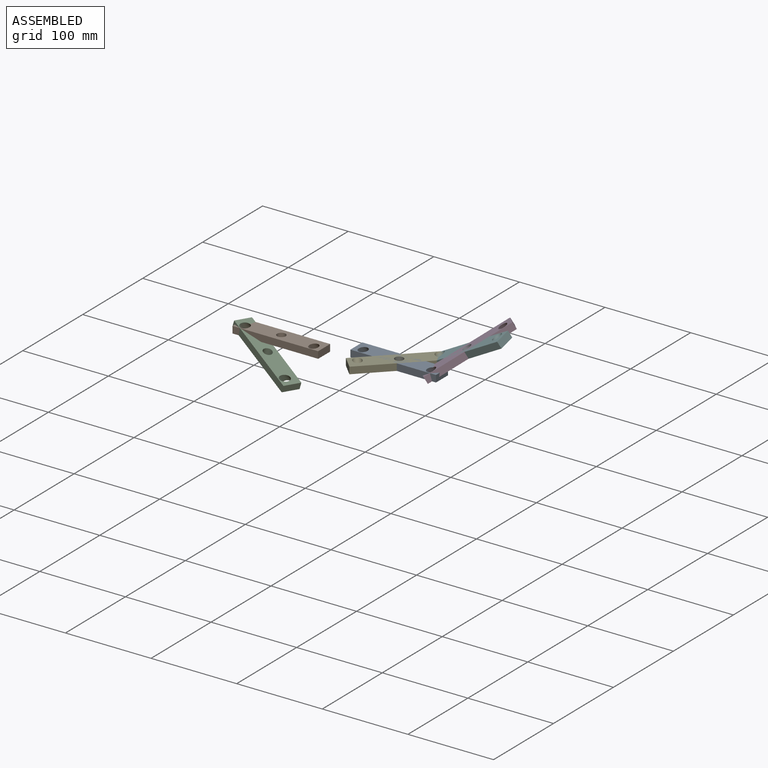
[diagram: assembled view]
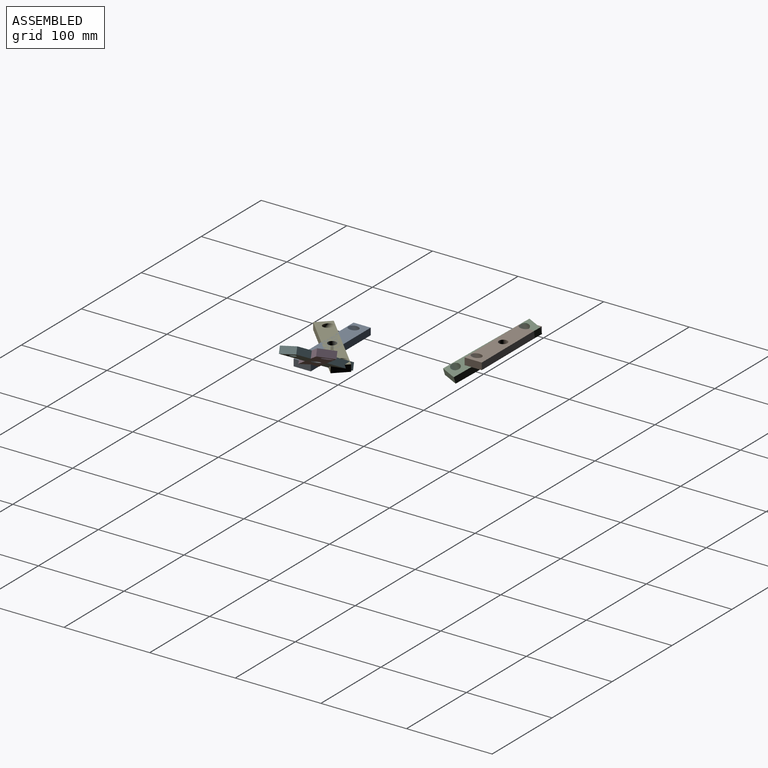
[diagram: assembled view, second angle]
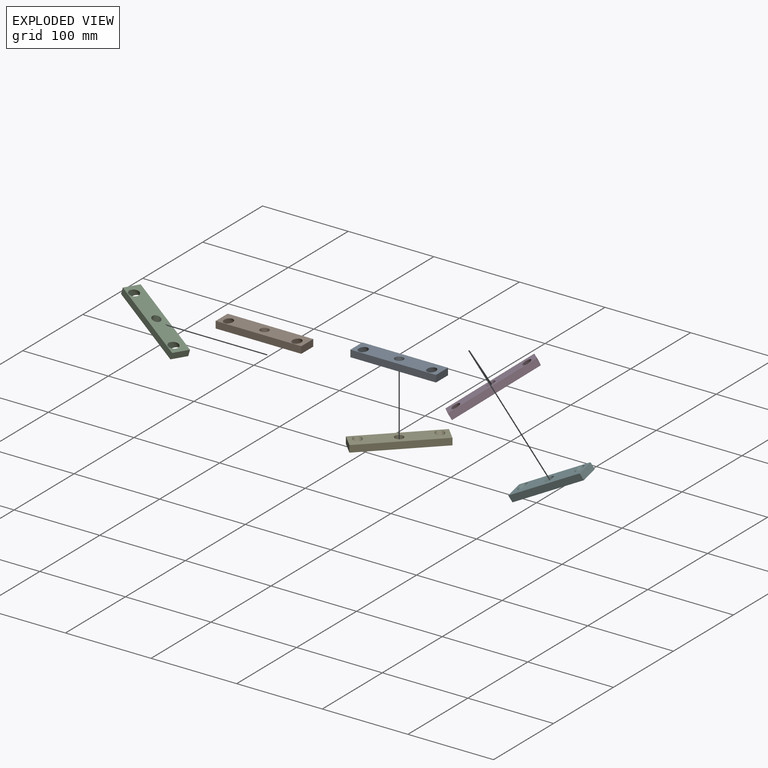
[diagram: exploded view]
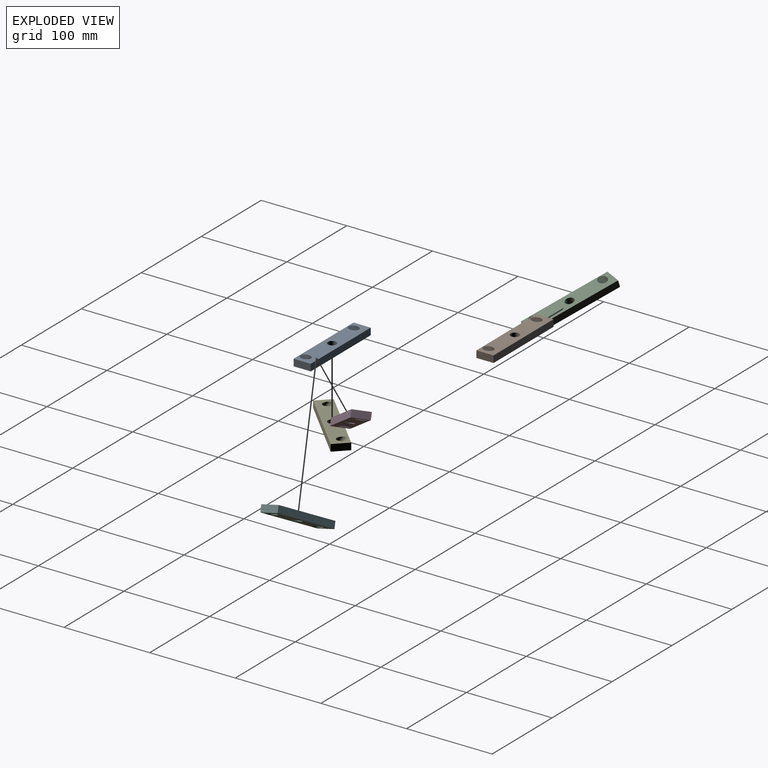
[diagram: exploded view, second angle]
ASSEMBLY  parts=6 mates=5
PART A: 9 faces, bbox 100x20x20 mm
  f0: plane 100x8mm, normal (0,1,0), area 800mm2, adj f1,f3,f4,f5
  f1: plane 20x8mm, normal (-1,0,0), area 160mm2, adj f0,f2,f4,f5
  f2: plane 100x8mm, normal (0,-1,0), area 800mm2, adj f1,f3,f4,f5
  f3: plane 20x8mm, normal (1,0,0), area 160mm2, adj f0,f2,f4,f5
  f4: plane 100x20mm, normal (0,0,1), area 1725.1mm2, adj f0,f1,f2,f3,f6,f7,f8
  f5: plane 100x20mm, normal (0,0,-1), area 1725.1mm2, adj f0,f1,f2,f3,f6,f7,f8
  f6: cylinder r=5mm len=20.04mm, axis (0,0.6,-0.8), area 314.2mm2, adj f4,f5
  f7: cylinder r=5mm len=20.04mm, axis (0,0.6,-0.8), area 314.2mm2, adj f4,f5
  f8: cylinder r=5mm len=10mm, axis (0,0,-1), area 251.3mm2, adj f4,f5
PART B: same geometry as A
PART C: same geometry as A
PART D: same geometry as A
PART E: same geometry as A
PART F: same geometry as A
PLACE A t=(187.27,-91.9,32.27)mm fixed
PLACE B t=(1.11,-22.56,-18.96)mm fixed
PLACE C rot(axis=(0,0.6,-0.8),30.5deg) t=(-16.1,-34.67,-28.03)mm
PLACE D rot(axis=(0,-0.6,0.8),54.3deg) t=(271.61,-60.34,55.94)mm
PLACE E rot(axis=(0,0,-1),135.4deg) t=(180.46,-57.3,32.27)mm
PLACE F rot(axis=(0.25,0.1,-0.96),180deg) t=(263.85,-26.13,59.54)mm
MATE revolute A.f6 <-> D.f7  axis (0,0.6,-0.8) through (230.96,-73.21,47.27)mm
MATE revolute E.f7 <-> F.f6  axis (0.42,-0.43,-0.8) through (219.44,-45.12,47.27)mm
MATE revolute F.f8 <-> D.f8  axis (0.49,0.2,-0.85) through (254.31,-47.23,66.76)mm
MATE revolute E.f8 <-> A.f8  axis (0,0,-1) through (190.96,-73.21,47.27)mm
MATE revolute B.f7 <-> C.f7  axis (0,0.6,-0.8) through (-35.2,-3.87,-3.96)mm
